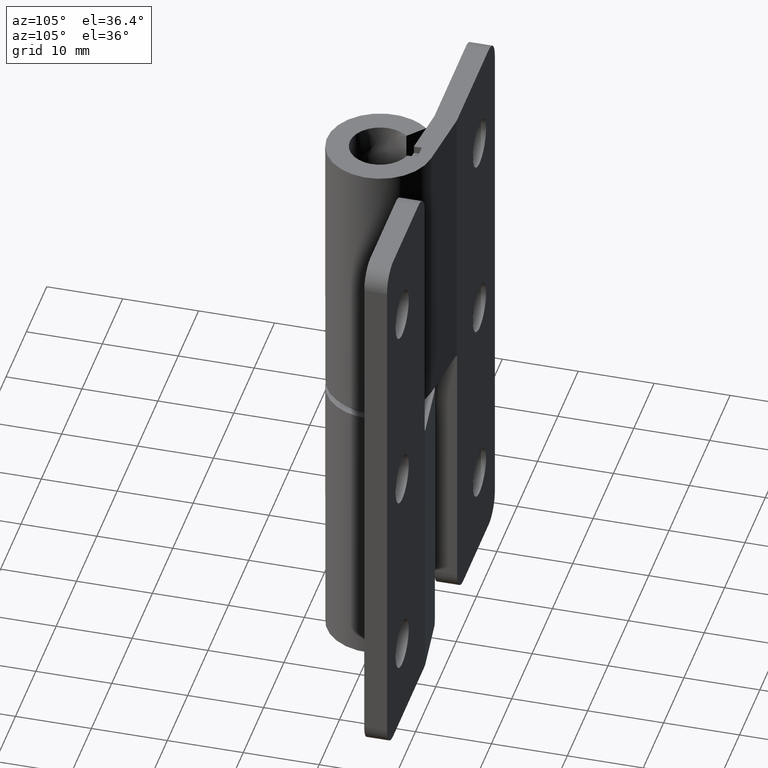
[diagram: clean part render]
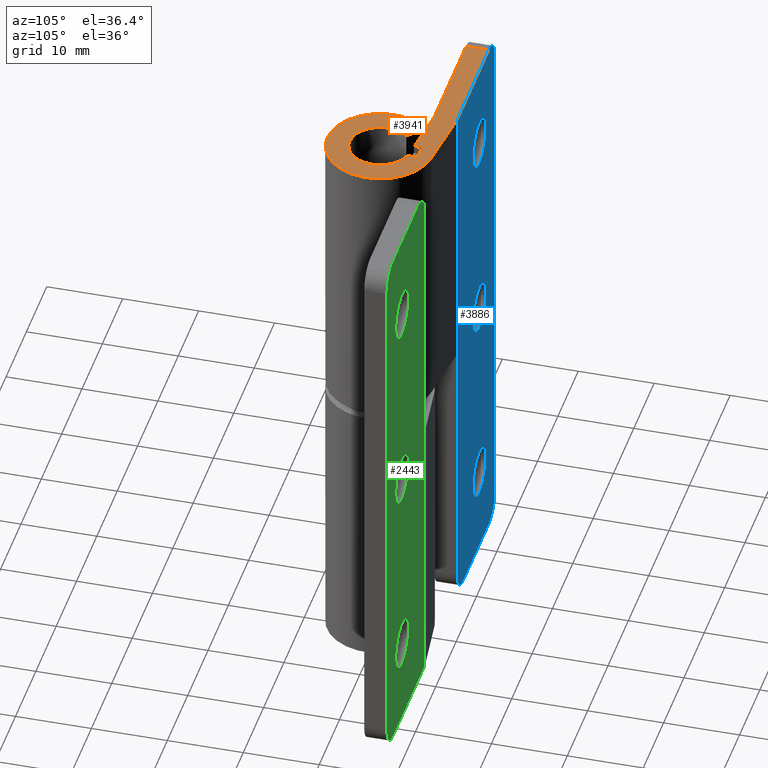
[diagram: same view with three faces highlighted in distinct colors, each labeled with its STEP entity id]
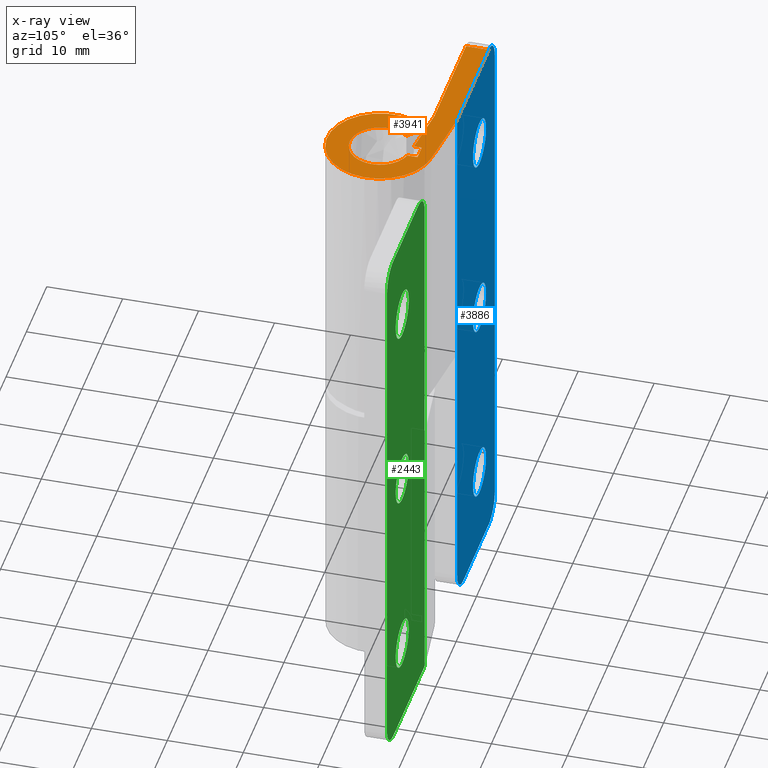
[diagram: x-ray of the same camera — body ghosted, the three highlighted faces saturated]
A machine part, auxiliary view with three faces highlighted in distinct colors.
The next image is the same camera in x-ray (body ghosted, the three faces saturated) — at least one of them is partly hidden behind the body in this view.
Their STEP definitions:

[orange] entity #3941 — the highlighted face is a freeform B-spline surface patch.
#3180=CARTESIAN_POINT('',(-1.050000000098436,5.200000000001650,75.000000000036593));
#3181=VERTEX_POINT('',#3180);
#3182=CARTESIAN_POINT('',(-1.050000000100060,4.156735502497970,75.000000000036593));
#3183=VERTEX_POINT('',#3182);
#3184=CARTESIAN_POINT('',(-1.050000000098436,5.200000000001650,75.000000000036593));
#3185=CARTESIAN_POINT('',(-1.050000000100060,4.156735502497970,75.000000000036593));
#3186=QUASI_UNIFORM_CURVE('',1,(#3184,#3185),.UNSPECIFIED.,.F.,.U.);
#3187=EDGE_CURVE('',#3181,#3183,#3186,.T.);
#3216=CARTESIAN_POINT('',(1.049999999901530,5.199999999998350,75.000000000036593));
#3217=VERTEX_POINT('',#3216);
#3218=CARTESIAN_POINT('',(1.049999999901530,5.199999999998350,75.000000000036593));
#3219=CARTESIAN_POINT('',(-1.050000000098436,5.200000000001650,75.000000000036593));
#3220=QUASI_UNIFORM_CURVE('',1,(#3218,#3219),.UNSPECIFIED.,.F.,.U.);
#3221=EDGE_CURVE('',#3217,#3181,#3220,.T.);
#3244=CARTESIAN_POINT('',(1.049999999899404,3.859727969687360,75.000000000036593));
#3245=VERTEX_POINT('',#3244);
#3253=CARTESIAN_POINT('',(1.049999999899404,3.859727969687360,75.000000000036593));
#3254=CARTESIAN_POINT('',(1.049999999901530,5.199999999998350,75.000000000036593));
#3255=QUASI_UNIFORM_CURVE('',1,(#3253,#3254),.UNSPECIFIED.,.F.,.U.);
#3256=EDGE_CURVE('',#3245,#3217,#3255,.T.);
#3497=CARTESIAN_POINT('',(-23.500000000086199,4.999999999963160,75.000000000036593));
#3498=VERTEX_POINT('',#3497);
#3512=CARTESIAN_POINT('',(-23.500000000090900,7.999999999963160,75.000000000036593));
#3513=VERTEX_POINT('',#3512);
#3514=CARTESIAN_POINT('',(-23.500000000086199,4.999999999963160,75.000000000036593));
#3515=CARTESIAN_POINT('',(-23.500000000090900,7.999999999963160,75.000000000036593));
#3516=QUASI_UNIFORM_CURVE('',1,(#3514,#3515),.UNSPECIFIED.,.F.,.U.);
#3517=EDGE_CURVE('',#3498,#3513,#3516,.T.);
#3629=CARTESIAN_POINT('',(-5.229044499477650,4.653718257866171,75.000000000036593));
#3630=VERTEX_POINT('',#3629);
#3636=CARTESIAN_POINT('',(-2.988025428313260,2.659267575929535,75.000000000036593));
#3637=VERTEX_POINT('',#3636);
#3638=CARTESIAN_POINT('',(-5.229044499477650,4.653718257866171,75.000000000036593));
#3639=CARTESIAN_POINT('',(-2.988025428313260,2.659267575929535,75.000000000036593));
#3640=QUASI_UNIFORM_CURVE('',1,(#3638,#3639),.UNSPECIFIED.,.F.,.U.);
#3641=EDGE_CURVE('',#3630,#3637,#3640,.T.);
#3674=CARTESIAN_POINT('',(0.843147540197748,6.949036064468050,75.000000000036593));
#3675=VERTEX_POINT('',#3674);
#3681=CARTESIAN_POINT('',(0.843147540197748,6.949036064468050,75.000000000036593));
#3682=CARTESIAN_POINT('',(1.228153984862157,6.902337435666095,75.000000000036678));
#3683=CARTESIAN_POINT('',(2.085681011588655,6.725083978096603,75.000000000036508));
#3684=CARTESIAN_POINT('',(3.392624233188009,6.186656248338614,75.000000000036650));
#3685=CARTESIAN_POINT('',(4.493283142389613,5.418996588129149,75.000000000036536));
#3686=CARTESIAN_POINT('',(5.296263956208282,4.607135356129789,75.000000000036579));
#3687=CARTESIAN_POINT('',(5.928445764569877,3.775864477810353,75.000000000037346));
#3688=CARTESIAN_POINT('',(6.459775151116721,2.790018630521475,75.000000000034447));
#3689=CARTESIAN_POINT('',(6.809260579038847,1.727124863356386,75.000000000039648));
#3690=CARTESIAN_POINT('',(7.000794601133540,0.626475157714561,75.000000000032870));
#3691=CARTESIAN_POINT('',(7.018821541970749,-0.468922239492666,75.000000000038256));
#3692=CARTESIAN_POINT('',(6.849919653304660,-1.549919751351906,75.000000000035456));
#3693=CARTESIAN_POINT('',(6.567272306148082,-2.479372516719491,75.000000000038753));
#3694=CARTESIAN_POINT('',(6.176542884559900,-3.342578478589023,75.000000000036266));
#3695=CARTESIAN_POINT('',(5.668783891146352,-4.142965603187220,75.000000000036621));
#3696=CARTESIAN_POINT('',(4.933150314410487,-5.015827898139150,75.000000000038611));
#3697=CARTESIAN_POINT('',(4.018549243719016,-5.784654548680722,75.000000000030667));
#3698=CARTESIAN_POINT('',(2.976494107535550,-6.363134186677295,75.000000000044565));
#3699=CARTESIAN_POINT('',(2.045071682079641,-6.715202836647508,75.000000000031974));
#3700=CARTESIAN_POINT('',(0.980988161568615,-6.966136037614988,75.000000000037360));
#3701=CARTESIAN_POINT('',(-0.381313929751510,-7.048281172523091,75.000000000036593));
#3702=CARTESIAN_POINT('',(-1.826651952099037,-6.810235183522812,75.000000000036451));
#3703=CARTESIAN_POINT('',(-3.051294440240663,-6.333722725513915,75.000000000036678));
#3704=CARTESIAN_POINT('',(-4.035717829019965,-5.754287736863438,75.000000000036536));
#3705=CARTESIAN_POINT('',(-4.937792989725065,-5.013069204769034,75.000000000036664));
#3706=CARTESIAN_POINT('',(-5.838583854005605,-3.957451288800839,75.000000000036593));
#3707=CARTESIAN_POINT('',(-6.509201425919281,-2.710398092346809,75.000000000036522));
#3708=CARTESIAN_POINT('',(-6.872489459892700,-1.472888547644732,75.000000000036636));
#3709=CARTESIAN_POINT('',(-7.001401137014597,-0.485158325877441,75.000000000036621));
#3710=CARTESIAN_POINT('',(-7.006418308469988,0.486015288778135,75.000000000036565));
#3711=CARTESIAN_POINT('',(-6.872088439216197,1.474201623570182,75.000000000036636));
#3712=CARTESIAN_POINT('',(-6.600174294052404,2.382224789781134,75.000000000036607));
#3713=CARTESIAN_POINT('',(-6.125803878132150,3.472559735111096,75.000000000036636));
#3714=CARTESIAN_POINT('',(-5.648229731859539,4.183072654507094,75.000000000036522));
#3715=CARTESIAN_POINT('',(-5.229044499477650,4.653718257866171,75.000000000036593));
#3716=B_SPLINE_CURVE_WITH_KNOTS('',3,(#3681,#3682,#3683,#3684,#3685,#3686,#3687,#3688,#3689,#3690,#3691,#3692,#3693,#3694,#3695,#3696,#3697,#3698,#3699,#3700,#3701,#3702,#3703,#3704,#3705,#3706,#3707,#3708,#3709,#3710,#3711,#3712,#3713,#3714,#3715),.UNSPECIFIED.,.F.,.U.,(4,1,1,1,1,1,1,1,1,1,1,1,1,1,1,1,1,1,1,1,1,1,1,1,1,1,1,1,1,1,1,1,4),(0.000000264474942,1.163496464239678,2.617896251126467,4.217732371452399,5.163094905734468,6.035729100692553,7.344711675485272,8.508205839438912,9.380799314111794,10.689773060144150,11.780548538524950,12.653195094547661,13.598564225885470,14.616647622013421,15.489292470699549,17.016419163417940,18.179911926047222,19.052517227314659,19.997863453836349,21.452257742405109,23.124829072133149,24.361068657249639,25.379164179568729,26.542676854979032,27.851632013139412,29.524119005292981,30.760365148541862,31.705736904417009,32.505657380639107,33.669176063204091,34.687271585714498,35.341753424378652,37.232431264057631),.UNSPECIFIED.);
#3717=EDGE_CURVE('',#3675,#3630,#3716,.T.);
#3730=CARTESIAN_POINT('',(-7.638651054254079,7.978158313356010,75.000000000036593));
#3731=VERTEX_POINT('',#3730);
#3737=CARTESIAN_POINT('',(-7.638651054254079,7.978158313356010,75.000000000036593));
#3738=CARTESIAN_POINT('',(0.843147540197748,6.949036064468050,75.000000000036593));
#3739=QUASI_UNIFORM_CURVE('',1,(#3737,#3738),.UNSPECIFIED.,.F.,.U.);
#3740=EDGE_CURVE('',#3731,#3675,#3739,.T.);
#3762=CARTESIAN_POINT('',(-8.000000000090921,7.999999999987449,75.000000000036593));
#3763=VERTEX_POINT('',#3762);
#3769=CARTESIAN_POINT('',(-8.000000000090921,7.999999999987449,75.000000000036593));
#3770=CARTESIAN_POINT('',(-7.818665418319995,8.000000000012046,75.000000000036593));
#3771=CARTESIAN_POINT('',(-7.638651054254080,7.978158313356008,75.000000000036593));
#3779=(BOUNDED_CURVE()B_SPLINE_CURVE(2,(#3769,#3770,#3771),.UNSPECIFIED.,.F.,.U.)CURVE()GEOMETRIC_REPRESENTATION_ITEM()QUASI_UNIFORM_CURVE()RATIONAL_B_SPLINE_CURVE((1.0,0.998178199967691,1.0))REPRESENTATION_ITEM(''));
#3780=EDGE_CURVE('',#3763,#3731,#3779,.T.);
#3811=CARTESIAN_POINT('',(-8.000000000098821,5.000000000012459,75.000000000036593));
#3812=VERTEX_POINT('',#3811);
#3818=CARTESIAN_POINT('',(-8.000000000098821,5.000000000012459,75.000000000036593));
#3819=CARTESIAN_POINT('',(-23.500000000086199,4.999999999963160,75.000000000036593));
#3820=QUASI_UNIFORM_CURVE('',1,(#3818,#3819),.UNSPECIFIED.,.F.,.U.);
#3821=EDGE_CURVE('',#3812,#3498,#3820,.T.);
#3858=CARTESIAN_POINT('',(-23.500000000090900,7.999999999963160,75.000000000036593));
#3859=CARTESIAN_POINT('',(-8.000000000090921,7.999999999987449,75.000000000036593));
#3860=QUASI_UNIFORM_CURVE('',1,(#3858,#3859),.UNSPECIFIED.,.F.,.U.);
#3861=EDGE_CURVE('',#3513,#3763,#3860,.T.);
#3887=CARTESIAN_POINT('',(8.523465952703150,-7.749183130910181,75.000000000036593));
#3888=CARTESIAN_POINT('',(-25.023475330188841,-7.749183130910181,75.000000000036593));
#3889=CARTESIAN_POINT('',(8.523465952703150,8.749247192622777,75.000000000036593));
#3890=CARTESIAN_POINT('',(-25.023475330188841,8.749247192622777,75.000000000036593));
#3891=B_SPLINE_SURFACE_WITH_KNOTS('',1,1,((#3887,#3889),(#3888,#3890)),.UNSPECIFIED.,.F.,.F.,.U.,(2,2),(2,2),(0.0,33.546941282891993),(0.0,16.498430323532961),.UNSPECIFIED.);
#3892=ORIENTED_EDGE('',*,*,#3221,.F.);
#3893=ORIENTED_EDGE('',*,*,#3256,.F.);
#3894=CARTESIAN_POINT('',(1.049999999899404,3.859727969687360,75.000000000036593));
#3895=CARTESIAN_POINT('',(1.427086095829823,3.757282268819521,75.000000000036650));
#3896=CARTESIAN_POINT('',(2.138305223418756,3.446157919268043,75.000000000036664));
#3897=CARTESIAN_POINT('',(2.908470418193726,2.797262359998546,75.000000000036266));
#3898=CARTESIAN_POINT('',(3.443788719696029,2.082987913930605,75.000000000037105));
#3899=CARTESIAN_POINT('',(3.780630151064380,1.387950799919365,75.000000000036138));
#3900=CARTESIAN_POINT('',(3.977560536355576,0.613971163746050,75.000000000036721));
#3901=CARTESIAN_POINT('',(4.017734685008406,-0.088752026836431,75.000000000036692));
#3902=CARTESIAN_POINT('',(3.945331666385993,-0.746640464067115,75.000000000036650));
#3903=CARTESIAN_POINT('',(3.756925750273319,-1.451903558450403,75.000000000037062));
#3904=CARTESIAN_POINT('',(3.417230580011145,-2.131873765610969,75.000000000036621));
#3905=CARTESIAN_POINT('',(2.966501582267782,-2.706108272322093,75.000000000036636));
#3906=CARTESIAN_POINT('',(2.513477474798667,-3.131390745965983,75.000000000036422));
#3907=CARTESIAN_POINT('',(1.945351460475861,-3.521988120665032,75.000000000038824));
#3908=CARTESIAN_POINT('',(1.313048393168246,-3.800755783209011,75.000000000031037));
#3909=CARTESIAN_POINT('',(0.591150102520642,-3.976218003412547,75.000000000040245));
#3910=CARTESIAN_POINT('',(-0.233123157718803,-4.031338871466588,75.000000000032813));
#3911=CARTESIAN_POINT('',(-1.198092420619839,-3.864927210610847,75.000000000041950));
#3912=CARTESIAN_POINT('',(-2.011523156602471,-3.488229896347252,75.000000000029999));
#3913=CARTESIAN_POINT('',(-2.611527428068294,-3.050088315014019,75.000000000043102));
#3914=CARTESIAN_POINT('',(-3.071792262546905,-2.592754049677137,75.000000000027825));
#3915=CARTESIAN_POINT('',(-3.541438284246459,-1.930599518299933,75.000000000041453));
#3916=CARTESIAN_POINT('',(-3.865227958293640,-1.152717551891664,75.000000000035243));
#3917=CARTESIAN_POINT('',(-4.029800697474396,-0.206238308701799,75.000000000036749));
#3918=CARTESIAN_POINT('',(-3.982545487040528,0.649221051185507,75.000000000037190));
#3919=CARTESIAN_POINT('',(-3.767345561593954,1.389835251055846,75.000000000036010));
#3920=CARTESIAN_POINT('',(-3.466387529546456,2.038892509777126,75.000000000034746));
#3921=CARTESIAN_POINT('',(-3.194102859253594,2.427815759946595,75.000000000042121));
#3922=CARTESIAN_POINT('',(-2.988025428313260,2.659267575929535,75.000000000036593));
#3923=B_SPLINE_CURVE_WITH_KNOTS('',3,(#3894,#3895,#3896,#3897,#3898,#3899,#3900,#3901,#3902,#3903,#3904,#3905,#3906,#3907,#3908,#3909,#3910,#3911,#3912,#3913,#3914,#3915,#3916,#3917,#3918,#3919,#3920,#3921,#3922),.UNSPECIFIED.,.F.,.U.,(4,1,1,1,1,1,1,1,1,1,1,1,1,1,1,1,1,1,1,1,1,1,1,1,1,1,4),(0.000000393546856,1.172235953221971,2.304063617344458,2.991251458722122,3.840138844360006,4.608174235852470,5.376157595663409,5.942051715916383,6.588813427224677,7.558956700895960,8.205717449973456,8.771647930178604,9.418417035069648,10.267280517463780,10.833145906029880,11.641579401258660,12.733004127429030,13.743571000559820,14.309502282274840,14.956262762641449,15.683788289597450,16.734783003122391,17.462398454217780,18.553812303033371,19.281424431653551,19.766511888132172,20.696190069228692),.UNSPECIFIED.);
#3924=EDGE_CURVE('',#3245,#3637,#3923,.T.);
#3925=ORIENTED_EDGE('',*,*,#3924,.T.);
#3926=ORIENTED_EDGE('',*,*,#3641,.F.);
#3927=ORIENTED_EDGE('',*,*,#3717,.F.);
#3928=ORIENTED_EDGE('',*,*,#3740,.F.);
#3929=ORIENTED_EDGE('',*,*,#3780,.F.);
#3930=ORIENTED_EDGE('',*,*,#3861,.F.);
#3931=ORIENTED_EDGE('',*,*,#3517,.F.);
#3932=ORIENTED_EDGE('',*,*,#3821,.F.);
#3933=CARTESIAN_POINT('',(-1.050000000100060,4.156735502497970,75.000000000036593));
#3934=CARTESIAN_POINT('',(-8.000000000098821,5.000000000012459,75.000000000036593));
#3935=QUASI_UNIFORM_CURVE('',1,(#3933,#3934),.UNSPECIFIED.,.F.,.U.);
#3936=EDGE_CURVE('',#3183,#3812,#3935,.T.);
#3937=ORIENTED_EDGE('',*,*,#3936,.F.);
#3938=ORIENTED_EDGE('',*,*,#3187,.F.);
#3939=EDGE_LOOP('',(#3892,#3893,#3925,#3926,#3927,#3928,#3929,#3930,#3931,#3932,#3937,#3938));
#3940=FACE_OUTER_BOUND('',#3939,.T.);
#3941=ADVANCED_FACE('',(#3940),#3891,.F.);

[blue] entity #3886 — the highlighted face is a freeform B-spline surface patch.
#2588=CARTESIAN_POINT('',(-19.195355326565171,7.999999999958459,66.694031354970377));
#2589=VERTEX_POINT('',#2588);
#2595=CARTESIAN_POINT('',(-15.799999999900100,7.999999999958459,63.500000000029793));
#2596=VERTEX_POINT('',#2595);
#2597=CARTESIAN_POINT('',(-19.195355326565164,7.999999999958460,66.694031354970377));
#2598=CARTESIAN_POINT('',(-19.097768842532560,7.999999999958459,66.700000000029789));
#2599=CARTESIAN_POINT('',(-18.999999999900101,7.999999999958459,66.700000000029789));
#2600=CARTESIAN_POINT('',(-15.799999999900097,7.999999999958459,66.700000000029789));
#2601=CARTESIAN_POINT('',(-15.799999999900100,7.999999999958459,63.500000000029793));
#2609=(BOUNDED_CURVE()B_SPLINE_CURVE(2,(#2597,#2598,#2599,#2600,#2601),.UNSPECIFIED.,.F.,.U.)B_SPLINE_CURVE_WITH_KNOTS((3,2,3),(0.239332962233675,0.250000000000000,0.500000000000000),.UNSPECIFIED.)CURVE()GEOMETRIC_REPRESENTATION_ITEM()RATIONAL_B_SPLINE_CURVE((0.976072041655427,0.987502787893665,1.0,0.707106781186548,1.0))REPRESENTATION_ITEM(''));
#2610=EDGE_CURVE('',#2589,#2596,#2609,.T.);
#2612=CARTESIAN_POINT('',(-18.804644673235028,7.999999999958460,60.305968645089209));
#2613=VERTEX_POINT('',#2612);
#2614=CARTESIAN_POINT('',(-15.799999999900100,7.999999999958459,63.500000000029793));
#2615=CARTESIAN_POINT('',(-15.799999999900107,7.999999999958460,60.489740586076536));
#2616=CARTESIAN_POINT('',(-18.804644673235035,7.999999999958460,60.305968645089216));
#2624=(BOUNDED_CURVE()B_SPLINE_CURVE(2,(#2614,#2615,#2616),.UNSPECIFIED.,.F.,.U.)B_SPLINE_CURVE_WITH_KNOTS((3,3),(0.500000000000000,0.739332962233675),.UNSPECIFIED.)CURVE()GEOMETRIC_REPRESENTATION_ITEM()RATIONAL_B_SPLINE_CURVE((1.0,0.719603993292882,0.976072041655426))REPRESENTATION_ITEM(''));
#2625=EDGE_CURVE('',#2596,#2613,#2624,.T.);
#2699=CARTESIAN_POINT('',(-22.199999999900101,7.999999999958459,63.500000000029793));
#2700=VERTEX_POINT('',#2699);
#2701=CARTESIAN_POINT('',(-18.804644673235035,7.999999999958460,60.305968645089216));
#2702=CARTESIAN_POINT('',(-18.902231157267636,7.999999999958459,60.300000000029797));
#2703=CARTESIAN_POINT('',(-18.999999999900101,7.999999999958459,60.300000000029797));
#2704=CARTESIAN_POINT('',(-22.199999999900093,7.999999999958459,60.300000000029797));
#2705=CARTESIAN_POINT('',(-22.199999999900101,7.999999999958459,63.500000000029793));
#2713=(BOUNDED_CURVE()B_SPLINE_CURVE(2,(#2701,#2702,#2703,#2704,#2705),.UNSPECIFIED.,.F.,.U.)B_SPLINE_CURVE_WITH_KNOTS((3,2,3),(0.739332962233675,0.750000000000000,1.0),.UNSPECIFIED.)CURVE()GEOMETRIC_REPRESENTATION_ITEM()RATIONAL_B_SPLINE_CURVE((0.976072041655426,0.987502787893665,1.0,0.707106781186548,1.0))REPRESENTATION_ITEM(''));
#2714=EDGE_CURVE('',#2613,#2700,#2713,.T.);
#2716=CARTESIAN_POINT('',(-22.199999999900101,7.999999999958459,63.500000000029793));
#2717=CARTESIAN_POINT('',(-22.199999999900097,7.999999999958458,66.510259413983064));
#2718=CARTESIAN_POINT('',(-19.195355326565174,7.999999999958461,66.694031354970392));
#2726=(BOUNDED_CURVE()B_SPLINE_CURVE(2,(#2716,#2717,#2718),.UNSPECIFIED.,.F.,.U.)B_SPLINE_CURVE_WITH_KNOTS((3,3),(0.0,0.239332962233675),.UNSPECIFIED.)CURVE()GEOMETRIC_REPRESENTATION_ITEM()RATIONAL_B_SPLINE_CURVE((1.0,0.719603993292882,0.976072041655427))REPRESENTATION_ITEM(''));
#2727=EDGE_CURVE('',#2700,#2589,#2726,.T.);
#2770=CARTESIAN_POINT('',(-19.195355326605970,7.999999999958458,40.694031354970477));
#2771=VERTEX_POINT('',#2770);
#2777=CARTESIAN_POINT('',(-15.799999999940900,7.999999999958459,37.500000000029900));
#2778=VERTEX_POINT('',#2777);
#2779=CARTESIAN_POINT('',(-19.195355326605974,7.999999999958459,40.694031354970491));
#2780=CARTESIAN_POINT('',(-19.097768842573359,7.999999999958459,40.700000000029895));
#2781=CARTESIAN_POINT('',(-18.999999999940901,7.999999999958459,40.700000000029902));
#2782=CARTESIAN_POINT('',(-15.799999999940898,7.999999999958459,40.700000000029902));
#2783=CARTESIAN_POINT('',(-15.799999999940900,7.999999999958459,37.500000000029900));
#2791=(BOUNDED_CURVE()B_SPLINE_CURVE(2,(#2779,#2780,#2781,#2782,#2783),.UNSPECIFIED.,.F.,.U.)B_SPLINE_CURVE_WITH_KNOTS((3,2,3),(0.239332962233674,0.250000000000000,0.500000000000000),.UNSPECIFIED.)CURVE()GEOMETRIC_REPRESENTATION_ITEM()RATIONAL_B_SPLINE_CURVE((0.976072041655426,0.987502787893665,1.0,0.707106781186548,1.0))REPRESENTATION_ITEM(''));
#2792=EDGE_CURVE('',#2771,#2778,#2791,.T.);
#2794=CARTESIAN_POINT('',(-18.804644673275831,7.999999999958460,34.305968645089322));
#2795=VERTEX_POINT('',#2794);
#2796=CARTESIAN_POINT('',(-15.799999999940900,7.999999999958459,37.500000000029900));
#2797=CARTESIAN_POINT('',(-15.799999999940892,7.999999999958460,34.489740586076636));
#2798=CARTESIAN_POINT('',(-18.804644673275831,7.999999999958460,34.305968645089322));
#2806=(BOUNDED_CURVE()B_SPLINE_CURVE(2,(#2796,#2797,#2798),.UNSPECIFIED.,.F.,.U.)B_SPLINE_CURVE_WITH_KNOTS((3,3),(0.500000000000000,0.739332962233675),.UNSPECIFIED.)CURVE()GEOMETRIC_REPRESENTATION_ITEM()RATIONAL_B_SPLINE_CURVE((1.0,0.719603993292882,0.976072041655426))REPRESENTATION_ITEM(''));
#2807=EDGE_CURVE('',#2778,#2795,#2806,.T.);
#2881=CARTESIAN_POINT('',(-22.199999999940900,7.999999999958459,37.500000000029900));
#2882=VERTEX_POINT('',#2881);
#2883=CARTESIAN_POINT('',(-18.804644673275831,7.999999999958459,34.305968645089301));
#2884=CARTESIAN_POINT('',(-18.902231157308439,7.999999999958459,34.300000000029897));
#2885=CARTESIAN_POINT('',(-18.999999999940901,7.999999999958459,34.300000000029897));
#2886=CARTESIAN_POINT('',(-22.199999999940907,7.999999999958459,34.300000000029897));
#2887=CARTESIAN_POINT('',(-22.199999999940900,7.999999999958459,37.500000000029900));
#2895=(BOUNDED_CURVE()B_SPLINE_CURVE(2,(#2883,#2884,#2885,#2886,#2887),.UNSPECIFIED.,.F.,.U.)B_SPLINE_CURVE_WITH_KNOTS((3,2,3),(0.739332962233674,0.750000000000000,1.0),.UNSPECIFIED.)CURVE()GEOMETRIC_REPRESENTATION_ITEM()RATIONAL_B_SPLINE_CURVE((0.976072041655426,0.987502787893665,1.0,0.707106781186548,1.0))REPRESENTATION_ITEM(''));
#2896=EDGE_CURVE('',#2795,#2882,#2895,.T.);
#2898=CARTESIAN_POINT('',(-22.199999999940900,7.999999999958459,37.500000000029900));
#2899=CARTESIAN_POINT('',(-22.199999999940889,7.999999999958458,40.510259413983150));
#2900=CARTESIAN_POINT('',(-19.195355326605970,7.999999999958459,40.694031354970484));
#2908=(BOUNDED_CURVE()B_SPLINE_CURVE(2,(#2898,#2899,#2900),.UNSPECIFIED.,.F.,.U.)B_SPLINE_CURVE_WITH_KNOTS((3,3),(0.0,0.239332962233674),.UNSPECIFIED.)CURVE()GEOMETRIC_REPRESENTATION_ITEM()RATIONAL_B_SPLINE_CURVE((1.0,0.719603993292883,0.976072041655426))REPRESENTATION_ITEM(''));
#2909=EDGE_CURVE('',#2882,#2771,#2908,.T.);
#2952=CARTESIAN_POINT('',(-19.195355326646819,7.999999999958459,14.694031354970480));
#2953=VERTEX_POINT('',#2952);
#2959=CARTESIAN_POINT('',(-15.799999999981750,7.999999999958459,11.500000000029900));
#2960=VERTEX_POINT('',#2959);
#2961=CARTESIAN_POINT('',(-19.195355326646823,7.999999999958460,14.694031354970480));
#2962=CARTESIAN_POINT('',(-19.097768842614215,7.999999999958459,14.700000000029897));
#2963=CARTESIAN_POINT('',(-18.999999999981750,7.999999999958459,14.700000000029901));
#2964=CARTESIAN_POINT('',(-15.799999999981754,7.999999999958459,14.700000000029897));
#2965=CARTESIAN_POINT('',(-15.799999999981750,7.999999999958459,11.500000000029900));
#2973=(BOUNDED_CURVE()B_SPLINE_CURVE(2,(#2961,#2962,#2963,#2964,#2965),.UNSPECIFIED.,.F.,.U.)B_SPLINE_CURVE_WITH_KNOTS((3,2,3),(0.239332962233675,0.250000000000000,0.500000000000000),.UNSPECIFIED.)CURVE()GEOMETRIC_REPRESENTATION_ITEM()RATIONAL_B_SPLINE_CURVE((0.976072041655426,0.987502787893665,1.0,0.707106781186548,1.0))REPRESENTATION_ITEM(''));
#2974=EDGE_CURVE('',#2953,#2960,#2973,.T.);
#2976=CARTESIAN_POINT('',(-18.804644673316691,7.999999999958460,8.305968645089315));
#2977=VERTEX_POINT('',#2976);
#2978=CARTESIAN_POINT('',(-15.799999999981750,7.999999999958459,11.500000000029900));
#2979=CARTESIAN_POINT('',(-15.799999999981754,7.999999999958458,8.489740586076637));
#2980=CARTESIAN_POINT('',(-18.804644673316691,7.999999999958460,8.305968645089317));
#2988=(BOUNDED_CURVE()B_SPLINE_CURVE(2,(#2978,#2979,#2980),.UNSPECIFIED.,.F.,.U.)B_SPLINE_CURVE_WITH_KNOTS((3,3),(0.500000000000000,0.739332962233675),.UNSPECIFIED.)CURVE()GEOMETRIC_REPRESENTATION_ITEM()RATIONAL_B_SPLINE_CURVE((1.0,0.719603993292882,0.976072041655427))REPRESENTATION_ITEM(''));
#2989=EDGE_CURVE('',#2960,#2977,#2988,.T.);
#3063=CARTESIAN_POINT('',(-22.199999999981749,7.999999999958459,11.500000000029900));
#3064=VERTEX_POINT('',#3063);
#3065=CARTESIAN_POINT('',(-18.804644673316691,7.999999999958460,8.305968645089317));
#3066=CARTESIAN_POINT('',(-18.902231157349291,7.999999999958459,8.300000000029902));
#3067=CARTESIAN_POINT('',(-18.999999999981750,7.999999999958459,8.300000000029900));
#3068=CARTESIAN_POINT('',(-22.199999999981749,7.999999999958459,8.300000000029902));
#3069=CARTESIAN_POINT('',(-22.199999999981749,7.999999999958459,11.500000000029900));
#3077=(BOUNDED_CURVE()B_SPLINE_CURVE(2,(#3065,#3066,#3067,#3068,#3069),.UNSPECIFIED.,.F.,.U.)B_SPLINE_CURVE_WITH_KNOTS((3,2,3),(0.739332962233675,0.750000000000000,1.0),.UNSPECIFIED.)CURVE()GEOMETRIC_REPRESENTATION_ITEM()RATIONAL_B_SPLINE_CURVE((0.976072041655427,0.987502787893665,1.0,0.707106781186548,1.0))REPRESENTATION_ITEM(''));
#3078=EDGE_CURVE('',#2977,#3064,#3077,.T.);
#3080=CARTESIAN_POINT('',(-22.199999999981749,7.999999999958459,11.500000000029900));
#3081=CARTESIAN_POINT('',(-22.199999999981753,7.999999999958460,14.510259413983157));
#3082=CARTESIAN_POINT('',(-19.195355326646823,7.999999999958460,14.694031354970480));
#3090=(BOUNDED_CURVE()B_SPLINE_CURVE(2,(#3080,#3081,#3082),.UNSPECIFIED.,.F.,.U.)B_SPLINE_CURVE_WITH_KNOTS((3,3),(0.0,0.239332962233675),.UNSPECIFIED.)CURVE()GEOMETRIC_REPRESENTATION_ITEM()RATIONAL_B_SPLINE_CURVE((1.0,0.719603993292882,0.976072041655426))REPRESENTATION_ITEM(''));
#3091=EDGE_CURVE('',#3064,#2953,#3090,.T.);
#3126=CARTESIAN_POINT('',(-8.000000000090921,7.999999999987449,37.500000000012548));
#3127=VERTEX_POINT('',#3126);
#3329=CARTESIAN_POINT('',(-10.999999999995239,7.999999999982750,3.687328E-011));
#3330=VERTEX_POINT('',#3329);
#3336=CARTESIAN_POINT('',(-8.000000000090921,7.999999999987449,3.000000000032200));
#3337=VERTEX_POINT('',#3336);
#3338=CARTESIAN_POINT('',(-10.999999999995239,7.999999999982750,3.687502E-011));
#3339=CARTESIAN_POINT('',(-7.999999999995241,7.999999999987451,3.687502E-011));
#3340=CARTESIAN_POINT('',(-7.999999999995240,7.999999999987451,3.000000000036875));
#3348=(BOUNDED_CURVE()B_SPLINE_CURVE(2,(#3338,#3339,#3340),.UNSPECIFIED.,.F.,.U.)CURVE()GEOMETRIC_REPRESENTATION_ITEM()QUASI_UNIFORM_CURVE()RATIONAL_B_SPLINE_CURVE((1.0,0.707106781186548,1.0))REPRESENTATION_ITEM(''));
#3349=EDGE_CURVE('',#3330,#3337,#3348,.T.);
#3364=CARTESIAN_POINT('',(-8.000000000090921,7.999999999987449,3.000000000032200));
#3365=CARTESIAN_POINT('',(-8.000000000090921,7.999999999987449,37.500000000012548));
#3366=QUASI_UNIFORM_CURVE('',1,(#3364,#3365),.UNSPECIFIED.,.F.,.U.);
#3367=EDGE_CURVE('',#3337,#3127,#3366,.T.);
#3512=CARTESIAN_POINT('',(-23.500000000090900,7.999999999963160,75.000000000036593));
#3513=VERTEX_POINT('',#3512);
#3519=CARTESIAN_POINT('',(-26.500000000090800,7.999999999958459,72.000000000036593));
#3520=VERTEX_POINT('',#3519);
#3521=CARTESIAN_POINT('',(-23.500000000090900,7.999999999963160,75.000000000036593));
#3522=CARTESIAN_POINT('',(-26.500000000090907,7.999999999958459,75.000000000036579));
#3523=CARTESIAN_POINT('',(-26.500000000090900,7.999999999958459,72.000000000036593));
#3531=(BOUNDED_CURVE()B_SPLINE_CURVE(2,(#3521,#3522,#3523),.UNSPECIFIED.,.F.,.U.)CURVE()GEOMETRIC_REPRESENTATION_ITEM()QUASI_UNIFORM_CURVE()RATIONAL_B_SPLINE_CURVE((1.0,0.707106781186548,1.0))REPRESENTATION_ITEM(''));
#3532=EDGE_CURVE('',#3513,#3520,#3531,.T.);
#3573=CARTESIAN_POINT('',(-26.500000000090800,7.999999999958459,3.000000000036860));
#3574=VERTEX_POINT('',#3573);
#3580=CARTESIAN_POINT('',(-23.500000000090900,7.999999999963160,3.687328E-011));
#3581=VERTEX_POINT('',#3580);
#3582=CARTESIAN_POINT('',(-26.500000000090800,7.999999999958459,3.000000000036860));
#3583=CARTESIAN_POINT('',(-26.500000000090907,7.999999999958459,3.685984E-011));
#3584=CARTESIAN_POINT('',(-23.500000000090900,7.999999999963160,3.685984E-011));
#3592=(BOUNDED_CURVE()B_SPLINE_CURVE(2,(#3582,#3583,#3584),.UNSPECIFIED.,.F.,.U.)CURVE()GEOMETRIC_REPRESENTATION_ITEM()QUASI_UNIFORM_CURVE()RATIONAL_B_SPLINE_CURVE((1.0,0.707106781186548,1.0))REPRESENTATION_ITEM(''));
#3593=EDGE_CURVE('',#3574,#3581,#3592,.T.);
#3614=CARTESIAN_POINT('',(-23.500000000090900,7.999999999963160,3.687328E-011));
#3615=CARTESIAN_POINT('',(-10.999999999995239,7.999999999982750,3.687328E-011));
#3616=QUASI_UNIFORM_CURVE('',1,(#3614,#3615),.UNSPECIFIED.,.F.,.U.);
#3617=EDGE_CURVE('',#3581,#3330,#3616,.T.);
#3762=CARTESIAN_POINT('',(-8.000000000090921,7.999999999987449,75.000000000036593));
#3763=VERTEX_POINT('',#3762);
#3764=CARTESIAN_POINT('',(-8.000000000090921,7.999999999987449,37.500000000012548));
#3765=CARTESIAN_POINT('',(-8.000000000090921,7.999999999987449,75.000000000036593));
#3766=QUASI_UNIFORM_CURVE('',1,(#3764,#3765),.UNSPECIFIED.,.F.,.U.);
#3767=EDGE_CURVE('',#3127,#3763,#3766,.T.);
#3796=CARTESIAN_POINT('',(-26.500000000090800,7.999999999958459,3.000000000036860));
#3797=CARTESIAN_POINT('',(-26.500000000090800,7.999999999958459,72.000000000036593));
#3798=QUASI_UNIFORM_CURVE('',1,(#3796,#3797),.UNSPECIFIED.,.F.,.U.);
#3799=EDGE_CURVE('',#3574,#3520,#3798,.T.);
#3849=CARTESIAN_POINT('',(-27.424074964234212,7.999999999957010,78.746249854672044));
#3850=CARTESIAN_POINT('',(-7.075924539738848,7.999999999988894,78.746249854672044));
#3851=CARTESIAN_POINT('',(-27.424074964234212,7.999999999957010,-3.746251866255323));
#3852=CARTESIAN_POINT('',(-7.075924539738848,7.999999999988895,-3.746251866255323));
#3853=B_SPLINE_SURFACE_WITH_KNOTS('',1,1,((#3849,#3851),(#3850,#3852)),.UNSPECIFIED.,.F.,.F.,.U.,(2,2),(2,2),(0.0,20.348150424495358),(0.0,82.492501720927365),.UNSPECIFIED.);
#3854=ORIENTED_EDGE('',*,*,#3617,.F.);
#3855=ORIENTED_EDGE('',*,*,#3593,.F.);
#3856=ORIENTED_EDGE('',*,*,#3799,.T.);
#3857=ORIENTED_EDGE('',*,*,#3532,.F.);
#3858=CARTESIAN_POINT('',(-23.500000000090900,7.999999999963160,75.000000000036593));
#3859=CARTESIAN_POINT('',(-8.000000000090921,7.999999999987449,75.000000000036593));
#3860=QUASI_UNIFORM_CURVE('',1,(#3858,#3859),.UNSPECIFIED.,.F.,.U.);
#3861=EDGE_CURVE('',#3513,#3763,#3860,.T.);
#3862=ORIENTED_EDGE('',*,*,#3861,.T.);
#3863=ORIENTED_EDGE('',*,*,#3767,.F.);
#3864=ORIENTED_EDGE('',*,*,#3367,.F.);
#3865=ORIENTED_EDGE('',*,*,#3349,.F.);
#3866=EDGE_LOOP('',(#3854,#3855,#3856,#3857,#3862,#3863,#3864,#3865));
#3867=FACE_OUTER_BOUND('',#3866,.T.);
#3868=ORIENTED_EDGE('',*,*,#2989,.F.);
#3869=ORIENTED_EDGE('',*,*,#2974,.F.);
#3870=ORIENTED_EDGE('',*,*,#3091,.F.);
#3871=ORIENTED_EDGE('',*,*,#3078,.F.);
#3872=EDGE_LOOP('',(#3868,#3869,#3870,#3871));
#3873=FACE_BOUND('',#3872,.T.);
#3874=ORIENTED_EDGE('',*,*,#2807,.F.);
#3875=ORIENTED_EDGE('',*,*,#2792,.F.);
#3876=ORIENTED_EDGE('',*,*,#2909,.F.);
#3877=ORIENTED_EDGE('',*,*,#2896,.F.);
#3878=EDGE_LOOP('',(#3874,#3875,#3876,#3877));
#3879=FACE_BOUND('',#3878,.T.);
#3880=ORIENTED_EDGE('',*,*,#2625,.F.);
#3881=ORIENTED_EDGE('',*,*,#2610,.F.);
#3882=ORIENTED_EDGE('',*,*,#2727,.F.);
#3883=ORIENTED_EDGE('',*,*,#2714,.F.);
#3884=EDGE_LOOP('',(#3880,#3881,#3882,#3883));
#3885=FACE_BOUND('',#3884,.T.);
#3886=ADVANCED_FACE('',(#3867,#3873,#3879,#3885),#3853,.T.);

[green] entity #2443 — the highlighted face is a freeform B-spline surface patch.
#1147=CARTESIAN_POINT('',(18.804644673434730,8.000000000041521,66.694031354910791));
#1148=VERTEX_POINT('',#1147);
#1154=CARTESIAN_POINT('',(22.200000000099799,8.000000000041521,63.499999999970207));
#1155=VERTEX_POINT('',#1154);
#1156=CARTESIAN_POINT('',(18.804644673434737,8.000000000041521,66.694031354910777));
#1157=CARTESIAN_POINT('',(18.902231157467337,8.000000000041521,66.699999999970188));
#1158=CARTESIAN_POINT('',(19.000000000099799,8.000000000041521,66.699999999970203));
#1159=CARTESIAN_POINT('',(22.200000000099791,8.000000000041521,66.699999999970217));
#1160=CARTESIAN_POINT('',(22.200000000099799,8.000000000041521,63.499999999970207));
#1168=(BOUNDED_CURVE()B_SPLINE_CURVE(2,(#1156,#1157,#1158,#1159,#1160),.UNSPECIFIED.,.F.,.U.)B_SPLINE_CURVE_WITH_KNOTS((3,2,3),(0.239332962233675,0.250000000000000,0.500000000000000),.UNSPECIFIED.)CURVE()GEOMETRIC_REPRESENTATION_ITEM()RATIONAL_B_SPLINE_CURVE((0.976072041655427,0.987502787893665,1.0,0.707106781186548,1.0))REPRESENTATION_ITEM(''));
#1169=EDGE_CURVE('',#1148,#1155,#1168,.T.);
#1171=CARTESIAN_POINT('',(19.195355326764869,8.000000000041521,60.305968645029623));
#1172=VERTEX_POINT('',#1171);
#1173=CARTESIAN_POINT('',(22.200000000099799,8.000000000041521,63.499999999970207));
#1174=CARTESIAN_POINT('',(22.200000000099802,8.000000000041522,60.489740586016950));
#1175=CARTESIAN_POINT('',(19.195355326764869,8.000000000041521,60.305968645029630));
#1183=(BOUNDED_CURVE()B_SPLINE_CURVE(2,(#1173,#1174,#1175),.UNSPECIFIED.,.F.,.U.)B_SPLINE_CURVE_WITH_KNOTS((3,3),(0.500000000000000,0.739332962233675),.UNSPECIFIED.)CURVE()GEOMETRIC_REPRESENTATION_ITEM()RATIONAL_B_SPLINE_CURVE((1.0,0.719603993292882,0.976072041655426))REPRESENTATION_ITEM(''));
#1184=EDGE_CURVE('',#1155,#1172,#1183,.T.);
#1258=CARTESIAN_POINT('',(15.800000000099800,8.000000000041521,63.499999999970207));
#1259=VERTEX_POINT('',#1258);
#1260=CARTESIAN_POINT('',(19.195355326764869,8.000000000041521,60.305968645029630));
#1261=CARTESIAN_POINT('',(19.097768842732258,8.000000000041522,60.299999999970204));
#1262=CARTESIAN_POINT('',(19.000000000099799,8.000000000041521,60.299999999970197));
#1263=CARTESIAN_POINT('',(15.800000000099798,8.000000000041521,60.299999999970211));
#1264=CARTESIAN_POINT('',(15.800000000099800,8.000000000041521,63.499999999970207));
#1272=(BOUNDED_CURVE()B_SPLINE_CURVE(2,(#1260,#1261,#1262,#1263,#1264),.UNSPECIFIED.,.F.,.U.)B_SPLINE_CURVE_WITH_KNOTS((3,2,3),(0.739332962233675,0.750000000000000,1.0),.UNSPECIFIED.)CURVE()GEOMETRIC_REPRESENTATION_ITEM()RATIONAL_B_SPLINE_CURVE((0.976072041655426,0.987502787893665,1.0,0.707106781186548,1.0))REPRESENTATION_ITEM(''));
#1273=EDGE_CURVE('',#1172,#1259,#1272,.T.);
#1275=CARTESIAN_POINT('',(15.800000000099800,8.000000000041521,63.499999999970207));
#1276=CARTESIAN_POINT('',(15.800000000099791,8.000000000041522,66.510259413923464));
#1277=CARTESIAN_POINT('',(18.804644673434737,8.000000000041521,66.694031354910777));
#1285=(BOUNDED_CURVE()B_SPLINE_CURVE(2,(#1275,#1276,#1277),.UNSPECIFIED.,.F.,.U.)B_SPLINE_CURVE_WITH_KNOTS((3,3),(0.0,0.239332962233675),.UNSPECIFIED.)CURVE()GEOMETRIC_REPRESENTATION_ITEM()RATIONAL_B_SPLINE_CURVE((1.0,0.719603993292882,0.976072041655427))REPRESENTATION_ITEM(''));
#1286=EDGE_CURVE('',#1259,#1148,#1285,.T.);
#1329=CARTESIAN_POINT('',(18.804644673393980,8.000000000041521,40.694031354910877));
#1330=VERTEX_POINT('',#1329);
#1336=CARTESIAN_POINT('',(22.200000000059049,8.000000000041521,37.499999999970299));
#1337=VERTEX_POINT('',#1336);
#1338=CARTESIAN_POINT('',(18.804644673393984,8.000000000041521,40.694031354910891));
#1339=CARTESIAN_POINT('',(18.902231157426591,8.000000000041522,40.699999999970295));
#1340=CARTESIAN_POINT('',(19.000000000059050,8.000000000041521,40.699999999970302));
#1341=CARTESIAN_POINT('',(22.200000000059049,8.000000000041521,40.699999999970309));
#1342=CARTESIAN_POINT('',(22.200000000059049,8.000000000041521,37.499999999970299));
#1350=(BOUNDED_CURVE()B_SPLINE_CURVE(2,(#1338,#1339,#1340,#1341,#1342),.UNSPECIFIED.,.F.,.U.)B_SPLINE_CURVE_WITH_KNOTS((3,2,3),(0.239332962233675,0.250000000000000,0.500000000000000),.UNSPECIFIED.)CURVE()GEOMETRIC_REPRESENTATION_ITEM()RATIONAL_B_SPLINE_CURVE((0.976072041655427,0.987502787893665,1.0,0.707106781186548,1.0))REPRESENTATION_ITEM(''));
#1351=EDGE_CURVE('',#1330,#1337,#1350,.T.);
#1353=CARTESIAN_POINT('',(19.195355326724119,8.000000000041521,34.305968645029722));
#1354=VERTEX_POINT('',#1353);
#1355=CARTESIAN_POINT('',(22.200000000059049,8.000000000041521,37.499999999970299));
#1356=CARTESIAN_POINT('',(22.200000000059060,8.000000000041522,34.489740586017035));
#1357=CARTESIAN_POINT('',(19.195355326724123,8.000000000041521,34.305968645029715));
#1365=(BOUNDED_CURVE()B_SPLINE_CURVE(2,(#1355,#1356,#1357),.UNSPECIFIED.,.F.,.U.)B_SPLINE_CURVE_WITH_KNOTS((3,3),(0.500000000000000,0.739332962233675),.UNSPECIFIED.)CURVE()GEOMETRIC_REPRESENTATION_ITEM()RATIONAL_B_SPLINE_CURVE((1.0,0.719603993292882,0.976072041655426))REPRESENTATION_ITEM(''));
#1366=EDGE_CURVE('',#1337,#1354,#1365,.T.);
#1440=CARTESIAN_POINT('',(15.800000000059050,8.000000000041521,37.499999999970299));
#1441=VERTEX_POINT('',#1440);
#1442=CARTESIAN_POINT('',(19.195355326724123,8.000000000041521,34.305968645029715));
#1443=CARTESIAN_POINT('',(19.097768842691512,8.000000000041522,34.299999999970296));
#1444=CARTESIAN_POINT('',(19.000000000059050,8.000000000041521,34.299999999970296));
#1445=CARTESIAN_POINT('',(15.800000000059056,8.000000000041521,34.299999999970296));
#1446=CARTESIAN_POINT('',(15.800000000059050,8.000000000041521,37.499999999970299));
#1454=(BOUNDED_CURVE()B_SPLINE_CURVE(2,(#1442,#1443,#1444,#1445,#1446),.UNSPECIFIED.,.F.,.U.)B_SPLINE_CURVE_WITH_KNOTS((3,2,3),(0.739332962233675,0.750000000000000,1.0),.UNSPECIFIED.)CURVE()GEOMETRIC_REPRESENTATION_ITEM()RATIONAL_B_SPLINE_CURVE((0.976072041655426,0.987502787893665,1.0,0.707106781186548,1.0))REPRESENTATION_ITEM(''));
#1455=EDGE_CURVE('',#1354,#1441,#1454,.T.);
#1457=CARTESIAN_POINT('',(15.800000000059050,8.000000000041521,37.499999999970299));
#1458=CARTESIAN_POINT('',(15.800000000059054,8.000000000041522,40.510259413923571));
#1459=CARTESIAN_POINT('',(18.804644673393980,8.000000000041521,40.694031354910891));
#1467=(BOUNDED_CURVE()B_SPLINE_CURVE(2,(#1457,#1458,#1459),.UNSPECIFIED.,.F.,.U.)B_SPLINE_CURVE_WITH_KNOTS((3,3),(0.0,0.239332962233674),.UNSPECIFIED.)CURVE()GEOMETRIC_REPRESENTATION_ITEM()RATIONAL_B_SPLINE_CURVE((1.0,0.719603993292883,0.976072041655426))REPRESENTATION_ITEM(''));
#1468=EDGE_CURVE('',#1441,#1330,#1467,.T.);
#1511=CARTESIAN_POINT('',(18.804644673353330,8.000000000041521,14.694031354910880));
#1512=VERTEX_POINT('',#1511);
#1518=CARTESIAN_POINT('',(22.200000000018399,8.000000000041521,11.499999999970299));
#1519=VERTEX_POINT('',#1518);
#1520=CARTESIAN_POINT('',(18.804644673353334,8.000000000041521,14.694031354910884));
#1521=CARTESIAN_POINT('',(18.902231157385934,8.000000000041522,14.699999999970302));
#1522=CARTESIAN_POINT('',(19.000000000018400,8.000000000041521,14.699999999970300));
#1523=CARTESIAN_POINT('',(22.200000000018402,8.000000000041521,14.699999999970302));
#1524=CARTESIAN_POINT('',(22.200000000018399,8.000000000041521,11.499999999970299));
#1532=(BOUNDED_CURVE()B_SPLINE_CURVE(2,(#1520,#1521,#1522,#1523,#1524),.UNSPECIFIED.,.F.,.U.)B_SPLINE_CURVE_WITH_KNOTS((3,2,3),(0.239332962233675,0.250000000000000,0.500000000000000),.UNSPECIFIED.)CURVE()GEOMETRIC_REPRESENTATION_ITEM()RATIONAL_B_SPLINE_CURVE((0.976072041655427,0.987502787893665,1.0,0.707106781186548,1.0))REPRESENTATION_ITEM(''));
#1533=EDGE_CURVE('',#1512,#1519,#1532,.T.);
#1535=CARTESIAN_POINT('',(19.195355326683469,8.000000000041521,8.305968645029719));
#1536=VERTEX_POINT('',#1535);
#1537=CARTESIAN_POINT('',(22.200000000018399,8.000000000041521,11.499999999970299));
#1538=CARTESIAN_POINT('',(22.200000000018395,8.000000000041522,8.489740586017042));
#1539=CARTESIAN_POINT('',(19.195355326683469,8.000000000041521,8.305968645029719));
#1547=(BOUNDED_CURVE()B_SPLINE_CURVE(2,(#1537,#1538,#1539),.UNSPECIFIED.,.F.,.U.)B_SPLINE_CURVE_WITH_KNOTS((3,3),(0.500000000000000,0.739332962233675),.UNSPECIFIED.)CURVE()GEOMETRIC_REPRESENTATION_ITEM()RATIONAL_B_SPLINE_CURVE((1.0,0.719603993292882,0.976072041655426))REPRESENTATION_ITEM(''));
#1548=EDGE_CURVE('',#1519,#1536,#1547,.T.);
#1622=CARTESIAN_POINT('',(15.800000000018400,8.000000000041521,11.499999999970299));
#1623=VERTEX_POINT('',#1622);
#1624=CARTESIAN_POINT('',(19.195355326683469,8.000000000041521,8.305968645029719));
#1625=CARTESIAN_POINT('',(19.097768842650861,8.000000000041522,8.299999999970302));
#1626=CARTESIAN_POINT('',(19.000000000018400,8.000000000041521,8.299999999970302));
#1627=CARTESIAN_POINT('',(15.800000000018397,8.000000000041521,8.299999999970302));
#1628=CARTESIAN_POINT('',(15.800000000018400,8.000000000041521,11.499999999970299));
#1636=(BOUNDED_CURVE()B_SPLINE_CURVE(2,(#1624,#1625,#1626,#1627,#1628),.UNSPECIFIED.,.F.,.U.)B_SPLINE_CURVE_WITH_KNOTS((3,2,3),(0.739332962233675,0.750000000000000,1.0),.UNSPECIFIED.)CURVE()GEOMETRIC_REPRESENTATION_ITEM()RATIONAL_B_SPLINE_CURVE((0.976072041655426,0.987502787893665,1.0,0.707106781186548,1.0))REPRESENTATION_ITEM(''));
#1637=EDGE_CURVE('',#1536,#1623,#1636,.T.);
#1639=CARTESIAN_POINT('',(15.800000000018400,8.000000000041521,11.499999999970299));
#1640=CARTESIAN_POINT('',(15.800000000018395,8.000000000041521,14.510259413923555));
#1641=CARTESIAN_POINT('',(18.804644673353334,8.000000000041521,14.694031354910884));
#1649=(BOUNDED_CURVE()B_SPLINE_CURVE(2,(#1639,#1640,#1641),.UNSPECIFIED.,.F.,.U.)B_SPLINE_CURVE_WITH_KNOTS((3,3),(0.0,0.239332962233675),.UNSPECIFIED.)CURVE()GEOMETRIC_REPRESENTATION_ITEM()RATIONAL_B_SPLINE_CURVE((1.0,0.719603993292882,0.976072041655427))REPRESENTATION_ITEM(''));
#1650=EDGE_CURVE('',#1623,#1512,#1649,.T.);
#1684=CARTESIAN_POINT('',(7.999999999909139,8.000000000012511,37.499999999987452));
#1685=VERTEX_POINT('',#1684);
#1887=CARTESIAN_POINT('',(11.000000000112980,8.000000000017211,74.999999999982705));
#1888=VERTEX_POINT('',#1887);
#1894=CARTESIAN_POINT('',(7.999999999909139,8.000000000012511,71.999999999987395));
#1895=VERTEX_POINT('',#1894);
#1896=CARTESIAN_POINT('',(11.000000000112980,8.000000000017211,74.999999999982705));
#1897=CARTESIAN_POINT('',(8.000000000117671,8.000000000012504,74.999999999982705));
#1898=CARTESIAN_POINT('',(8.000000000112980,8.000000000012504,71.999999999987395));
#1906=(BOUNDED_CURVE()B_SPLINE_CURVE(2,(#1896,#1897,#1898),.UNSPECIFIED.,.F.,.U.)CURVE()GEOMETRIC_REPRESENTATION_ITEM()QUASI_UNIFORM_CURVE()RATIONAL_B_SPLINE_CURVE((1.0,0.707106781187100,1.0))REPRESENTATION_ITEM(''));
#1907=EDGE_CURVE('',#1888,#1895,#1906,.T.);
#1948=CARTESIAN_POINT('',(26.499999999909150,8.000000000041521,71.999999999982705));
#1949=VERTEX_POINT('',#1948);
#1955=CARTESIAN_POINT('',(23.499999999909150,8.000000000036820,74.999999999982705));
#1956=VERTEX_POINT('',#1955);
#1957=CARTESIAN_POINT('',(26.499999999909150,8.000000000041526,71.999999999982705));
#1958=CARTESIAN_POINT('',(26.499999999909154,8.000000000041526,74.999999999982705));
#1959=CARTESIAN_POINT('',(23.499999999909150,8.000000000036820,74.999999999982705));
#1967=(BOUNDED_CURVE()B_SPLINE_CURVE(2,(#1957,#1958,#1959),.UNSPECIFIED.,.F.,.U.)CURVE()GEOMETRIC_REPRESENTATION_ITEM()QUASI_UNIFORM_CURVE()RATIONAL_B_SPLINE_CURVE((1.0,0.707106781186548,1.0))REPRESENTATION_ITEM(''));
#1968=EDGE_CURVE('',#1949,#1956,#1967,.T.);
#2009=CARTESIAN_POINT('',(23.499999999909150,8.000000000036820,1.098499E-011));
#2010=VERTEX_POINT('',#2009);
#2016=CARTESIAN_POINT('',(26.499999999909150,8.000000000041521,3.000000000010995));
#2017=VERTEX_POINT('',#2016);
#2018=CARTESIAN_POINT('',(23.499999999909150,8.000000000036820,1.098514E-011));
#2019=CARTESIAN_POINT('',(26.499999999909154,8.000000000041526,1.098514E-011));
#2020=CARTESIAN_POINT('',(26.499999999909150,8.000000000041526,3.000000000010985));
#2028=(BOUNDED_CURVE()B_SPLINE_CURVE(2,(#2018,#2019,#2020),.UNSPECIFIED.,.F.,.U.)CURVE()GEOMETRIC_REPRESENTATION_ITEM()QUASI_UNIFORM_CURVE()RATIONAL_B_SPLINE_CURVE((1.0,0.707106781186548,1.0))REPRESENTATION_ITEM(''));
#2029=EDGE_CURVE('',#2010,#2017,#2028,.T.);
#2146=CARTESIAN_POINT('',(7.999999999909139,8.000000000012511,71.999999999987395));
#2147=CARTESIAN_POINT('',(7.999999999909139,8.000000000012511,37.499999999987452));
#2148=QUASI_UNIFORM_CURVE('',1,(#2146,#2147),.UNSPECIFIED.,.F.,.U.);
#2149=EDGE_CURVE('',#1895,#1685,#2148,.T.);
#2166=CARTESIAN_POINT('',(26.499999999909150,8.000000000041521,71.999999999982705));
#2167=CARTESIAN_POINT('',(26.499999999909150,8.000000000041521,3.000000000010995));
#2168=QUASI_UNIFORM_CURVE('',1,(#2166,#2167),.UNSPECIFIED.,.F.,.U.);
#2169=EDGE_CURVE('',#1949,#2017,#2168,.T.);
#2186=CARTESIAN_POINT('',(23.499999999909150,8.000000000036820,74.999999999982705));
#2187=CARTESIAN_POINT('',(11.000000000112980,8.000000000017211,74.999999999982705));
#2188=QUASI_UNIFORM_CURVE('',1,(#2186,#2187),.UNSPECIFIED.,.F.,.U.);
#2189=EDGE_CURVE('',#1956,#1888,#2188,.T.);
#2337=CARTESIAN_POINT('',(7.999999999909139,8.000000000012511,1.099121E-011));
#2338=VERTEX_POINT('',#2337);
#2339=CARTESIAN_POINT('',(7.999999999909139,8.000000000012511,37.499999999987452));
#2340=CARTESIAN_POINT('',(7.999999999909139,8.000000000012511,1.099121E-011));
#2341=QUASI_UNIFORM_CURVE('',1,(#2339,#2340),.UNSPECIFIED.,.F.,.U.);
#2342=EDGE_CURVE('',#1685,#2338,#2341,.T.);
#2406=CARTESIAN_POINT('',(7.075925035765726,8.000000000011053,78.746249854616750));
#2407=CARTESIAN_POINT('',(27.424075460261228,8.000000000042968,78.746249854616735));
#2408=CARTESIAN_POINT('',(7.075925035765726,8.000000000011053,-3.746251866279811));
#2409=CARTESIAN_POINT('',(27.424075460261228,8.000000000042968,-3.746251866279811));
#2410=B_SPLINE_SURFACE_WITH_KNOTS('',1,1,((#2406,#2408),(#2407,#2409)),.UNSPECIFIED.,.F.,.F.,.U.,(2,2),(2,2),(0.0,20.348150424495500),(0.0,82.492501720896556),.UNSPECIFIED.);
#2411=CARTESIAN_POINT('',(23.499999999909150,8.000000000036820,1.098499E-011));
#2412=CARTESIAN_POINT('',(7.999999999909139,8.000000000012511,1.099121E-011));
#2413=QUASI_UNIFORM_CURVE('',1,(#2411,#2412),.UNSPECIFIED.,.F.,.U.);
#2414=EDGE_CURVE('',#2010,#2338,#2413,.T.);
#2415=ORIENTED_EDGE('',*,*,#2414,.T.);
#2416=ORIENTED_EDGE('',*,*,#2342,.F.);
#2417=ORIENTED_EDGE('',*,*,#2149,.F.);
#2418=ORIENTED_EDGE('',*,*,#1907,.F.);
#2419=ORIENTED_EDGE('',*,*,#2189,.F.);
#2420=ORIENTED_EDGE('',*,*,#1968,.F.);
#2421=ORIENTED_EDGE('',*,*,#2169,.T.);
#2422=ORIENTED_EDGE('',*,*,#2029,.F.);
#2423=EDGE_LOOP('',(#2415,#2416,#2417,#2418,#2419,#2420,#2421,#2422));
#2424=FACE_OUTER_BOUND('',#2423,.T.);
#2425=ORIENTED_EDGE('',*,*,#1548,.F.);
#2426=ORIENTED_EDGE('',*,*,#1533,.F.);
#2427=ORIENTED_EDGE('',*,*,#1650,.F.);
#2428=ORIENTED_EDGE('',*,*,#1637,.F.);
#2429=EDGE_LOOP('',(#2425,#2426,#2427,#2428));
#2430=FACE_BOUND('',#2429,.T.);
#2431=ORIENTED_EDGE('',*,*,#1366,.F.);
#2432=ORIENTED_EDGE('',*,*,#1351,.F.);
#2433=ORIENTED_EDGE('',*,*,#1468,.F.);
#2434=ORIENTED_EDGE('',*,*,#1455,.F.);
#2435=EDGE_LOOP('',(#2431,#2432,#2433,#2434));
#2436=FACE_BOUND('',#2435,.T.);
#2437=ORIENTED_EDGE('',*,*,#1184,.F.);
#2438=ORIENTED_EDGE('',*,*,#1169,.F.);
#2439=ORIENTED_EDGE('',*,*,#1286,.F.);
#2440=ORIENTED_EDGE('',*,*,#1273,.F.);
#2441=EDGE_LOOP('',(#2437,#2438,#2439,#2440));
#2442=FACE_BOUND('',#2441,.T.);
#2443=ADVANCED_FACE('',(#2424,#2430,#2436,#2442),#2410,.T.);